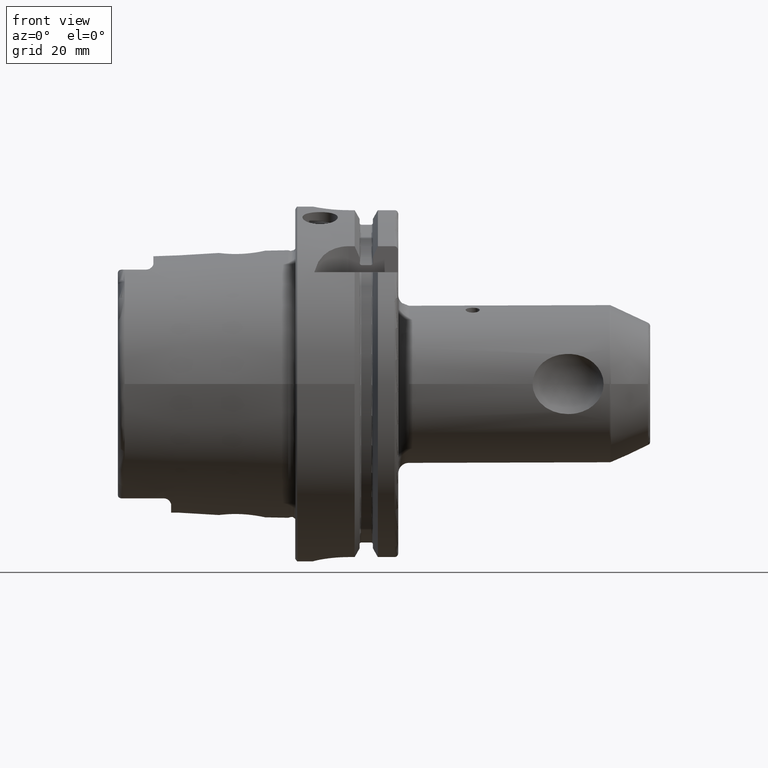
[diagram: clean part render]
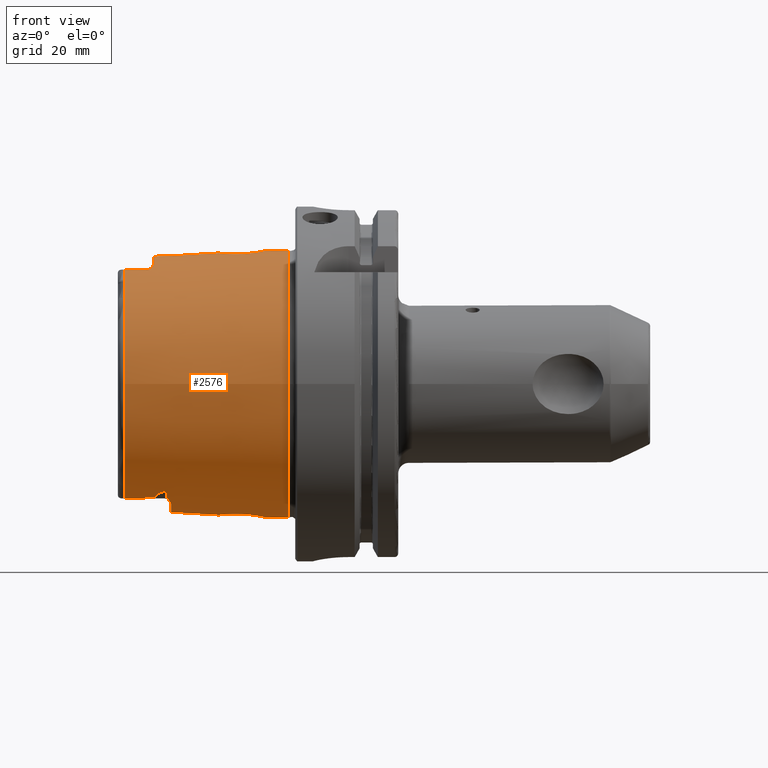
[diagram: same view with one face highlighted and labeled with its STEP entity id]
A machine part, front view. The second image highlights one B-rep face of the part: STEP entity #2576.
In plain terms, the highlighted conical surface has half-angle 2.868 deg.
Its self-contained STEP definition (entity closure, byte-faithful):
#21=(
BOUNDED_CURVE()
B_SPLINE_CURVE(2,(#4807,#4808,#4809),.UNSPECIFIED.,.F.,.F.)
B_SPLINE_CURVE_WITH_KNOTS((3,3),(0.584552731684763,1.01274112792473),
 .UNSPECIFIED.)
CURVE()
GEOMETRIC_REPRESENTATION_ITEM()
RATIONAL_B_SPLINE_CURVE((1.00299496728687,1.00299496728687,1.00138797244737))
REPRESENTATION_ITEM('')
);
#22=(
BOUNDED_CURVE()
B_SPLINE_CURVE(2,(#4876,#4877,#4878),.UNSPECIFIED.,.F.,.F.)
B_SPLINE_CURVE_WITH_KNOTS((3,3),(0.156364335444822,0.584552731684782),
 .UNSPECIFIED.)
CURVE()
GEOMETRIC_REPRESENTATION_ITEM()
RATIONAL_B_SPLINE_CURVE((1.00138797244738,1.00299496728688,1.00299496728688))
REPRESENTATION_ITEM('')
);
#78=CONICAL_SURFACE('',#2810,36.7524901081155,0.0500583457465976);
#100=FACE_BOUND('',#818,.T.);
#101=FACE_BOUND('',#819,.T.);
#205=LINE('',#4784,#329);
#329=VECTOR('',#3322,36.7524901081155);
#473=CIRCLE('',#2811,37.9073016032064);
#474=CIRCLE('',#2812,37.9073016032064);
#475=CIRCLE('',#2813,35.5976786130245);
#476=CIRCLE('',#2814,36.25399498998);
#477=CIRCLE('',#2815,35.5976786130245);
#478=CIRCLE('',#2816,36.003493987976);
#479=CIRCLE('',#2817,35.5976786130245);
#672=FACE_OUTER_BOUND('',#817,.T.);
#817=EDGE_LOOP('',(#2000,#2001,#2002,#2003,#2004,#2005,#2006,#2007,#2008,
#2009,#2010,#2011,#2012,#2013,#2014,#2015,#2016,#2017,#2018,#2019,#2020));
#818=EDGE_LOOP('',(#2021));
#819=EDGE_LOOP('',(#2022));
#942=B_SPLINE_CURVE_WITH_KNOTS('',3,(#4467,#4468,#4469,#4470,#4471,#4472,
#4473,#4474,#4475,#4476,#4477,#4478,#4479,#4480,#4481,#4482,#4483,#4484),
 .UNSPECIFIED.,.F.,.F.,(4,2,2,2,2,2,2,2,4),(1.82139636410114,1.83165892733975,
1.84192149057836,1.86244661705558,1.93660019990987,2.01075378276416,2.21475865094393,
2.41876351912369,2.7012608097453),.UNSPECIFIED.);
#944=B_SPLINE_CURVE_WITH_KNOTS('',3,(#4544,#4545,#4546,#4547,#4548,#4549,
#4550,#4551),.UNSPECIFIED.,.F.,.F.,(4,2,2,4),(2.11861414458057,2.2150675983984,
2.41910198133518,2.70152248778045),.UNSPECIFIED.);
#945=B_SPLINE_CURVE_WITH_KNOTS('',3,(#4570,#4571,#4572,#4573,#4574,#4575,
#4576,#4577),.UNSPECIFIED.,.F.,.F.,(4,2,2,4),(0.941785791175404,1.22420629762067,
1.42824068055745,1.52469413437528),.UNSPECIFIED.);
#949=B_SPLINE_CURVE_WITH_KNOTS('',3,(#4749,#4750,#4751,#4752,#4753,#4754,
#4755,#4756,#4757,#4758,#4759,#4760,#4761,#4762,#4763,#4764,#4765,#4766,
#4767,#4768,#4769,#4770,#4771,#4772,#4773,#4774,#4775,#4776,#4777),
 .UNSPECIFIED.,.T.,.F.,(4,1,1,1,1,1,1,1,1,1,1,1,1,1,1,1,1,1,1,1,1,1,1,1,
1,1,4),(-3.62526060553391,-3.43105021595174,-3.36631341942435,-3.23683982636957,
-3.10736623331478,-2.92934004286446,-2.91315584373261,-2.84841904720522,
-2.58947186109565,-2.49236666630457,-2.45999826804087,-2.33052467498609,
-2.2010510819313,-2.07157748887652,-2.02841962452493,-1.89894603147015,
-1.72631457406377,-1.55368311665739,-1.42420952360261,-1.38105165925101,
-1.20842020184464,-1.03578874443826,-0.776841558328696,-0.517894372219131,
-0.388420779164348,-0.258947186109565,0.),.UNSPECIFIED.);
#950=B_SPLINE_CURVE_WITH_KNOTS('',3,(#4788,#4789,#4790,#4791,#4792,#4793,
#4794,#4795,#4796,#4797,#4798,#4799,#4800,#4801,#4802,#4803,#4804,#4805),
 .UNSPECIFIED.,.F.,.F.,(4,2,2,2,2,2,2,2,4),(0.941531918456969,1.22402920907858,
1.42803407725834,1.6320389454381,1.70619252829239,1.78034611114668,1.80087123762391,
1.81113380086252,1.82139636410113),.UNSPECIFIED.);
#951=B_SPLINE_CURVE_WITH_KNOTS('',3,(#4811,#4812,#4813,#4814,#4815,#4816,
#4817,#4818,#4819,#4820,#4821,#4822,#4823,#4824,#4825,#4826,#4827,#4828),
 .UNSPECIFIED.,.F.,.F.,(4,2,2,2,2,2,2,2,4),(0.,0.135304265390776,0.202956398086164,
0.270608530781553,0.285985760505599,0.293674375367622,0.301362990229646,
0.309065814809453,0.312240543595572),.UNSPECIFIED.);
#952=B_SPLINE_CURVE_WITH_KNOTS('',3,(#4830,#4831,#4832,#4833,#4834,#4835,
#4836,#4837,#4838,#4839),.UNSPECIFIED.,.F.,.F.,(4,2,2,2,4),(0.355882377060995,
0.475337474766694,0.814409309765022,0.916871755852706,0.968383615557496),
 .UNSPECIFIED.);
#953=B_SPLINE_CURVE_WITH_KNOTS('',3,(#4843,#4844,#4845,#4846,#4847,#4848,
#4849,#4850,#4851,#4852,#4853,#4854,#4855,#4856),.UNSPECIFIED.,.F.,.F.,
(4,2,2,2,2,2,4),(0.968383615556389,0.974150710871793,1.03435732629017,1.16414359525985,
1.35274565404089,1.53834753535579,1.54014497255994),.UNSPECIFIED.);
#954=B_SPLINE_CURVE_WITH_KNOTS('',3,(#4858,#4859,#4860,#4861,#4862,#4863,
#4864,#4865,#4866,#4867,#4868,#4869,#4870,#4871,#4872,#4873,#4874,#4875),
 .UNSPECIFIED.,.F.,.F.,(4,2,2,2,2,2,2,2,4),(0.892798921569998,0.895973650356147,
0.903676474935954,0.911365089797976,0.919053704659998,0.934430934384042,
1.00208306707943,1.06973519977482,1.2050394651656),.UNSPECIFIED.);
#955=B_SPLINE_CURVE_WITH_KNOTS('',3,(#4881,#4882,#4883,#4884,#4885,#4886,
#4887,#4888,#4889,#4890,#4891,#4892,#4893,#4894,#4895,#4896),
 .UNSPECIFIED.,.F.,.F.,(4,2,2,2,2,2,2,4),(0.951925610471479,1.05814966475809,
1.29620724158489,1.38654842287017,1.45440735859072,1.51777192560581,1.57393791037476,
1.57713817106295),.UNSPECIFIED.);
#956=B_SPLINE_CURVE_WITH_KNOTS('',3,(#4899,#4900,#4901,#4902,#4903,#4904,
#4905,#4906,#4907,#4908,#4909,#4910,#4911,#4912),.UNSPECIFIED.,.F.,.F.,
(4,2,2,2,2,2,4),(0.58599893882249,0.631178615980692,0.682399631970958,0.741327952034728,
0.839467365501743,1.06407790074447,1.25314135770608),.UNSPECIFIED.);
#957=B_SPLINE_CURVE_WITH_KNOTS('',3,(#4915,#4916,#4917,#4918,#4919,#4920,
#4921,#4922,#4923,#4924,#4925,#4926,#4927,#4928,#4929,#4930,#4931,#4932,
#4933,#4934,#4935,#4936,#4937,#4938,#4939,#4940),.UNSPECIFIED.,.T.,.F.,
(4,1,1,1,1,1,1,1,1,1,1,1,1,1,1,1,1,1,1,1,1,1,1,4),(-3.62526060553391,-3.36631341942435,
-3.23683982636957,-3.13973463157848,-3.10736623331478,-2.84841904720522,
-2.58947186109565,-2.41684040368928,-2.2442089462829,-2.2010510819313,-2.07157748887652,
-1.89894603147015,-1.72631457406377,-1.55368311665739,-1.42420952360261,
-1.29473593054783,-1.16526233749304,-1.03578874443826,-0.776841558328696,
-0.712104761801304,-0.51789437221913,-0.388420779164348,-0.258947186109565,
0.),.UNSPECIFIED.);
#1101=VERTEX_POINT('',#4453);
#1102=VERTEX_POINT('',#4466);
#1118=VERTEX_POINT('',#4530);
#1119=VERTEX_POINT('',#4543);
#1125=VERTEX_POINT('',#4567);
#1126=VERTEX_POINT('',#4569);
#1129=VERTEX_POINT('',#4712);
#1132=VERTEX_POINT('',#4779);
#1133=VERTEX_POINT('',#4780);
#1134=VERTEX_POINT('',#4783);
#1135=VERTEX_POINT('',#4785);
#1136=VERTEX_POINT('',#4787);
#1137=VERTEX_POINT('',#4806);
#1138=VERTEX_POINT('',#4810);
#1139=VERTEX_POINT('',#4829);
#1140=VERTEX_POINT('',#4840);
#1141=VERTEX_POINT('',#4842);
#1142=VERTEX_POINT('',#4857);
#1143=VERTEX_POINT('',#4880);
#1144=VERTEX_POINT('',#4897);
#1145=VERTEX_POINT('',#4914);
#1420=EDGE_CURVE('',#1102,#1101,#942,.T.);
#1442=EDGE_CURVE('',#1119,#1118,#944,.T.);
#1450=EDGE_CURVE('',#1126,#1125,#945,.T.);
#1458=EDGE_CURVE('',#1129,#1129,#949,.T.);
#1459=EDGE_CURVE('',#1132,#1133,#473,.T.);
#1460=EDGE_CURVE('',#1133,#1132,#474,.T.);
#1461=EDGE_CURVE('',#1133,#1134,#205,.T.);
#1462=EDGE_CURVE('',#1134,#1135,#475,.T.);
#1463=EDGE_CURVE('',#1135,#1136,#950,.T.);
#1464=EDGE_CURVE('',#1136,#1137,#21,.T.);
#1465=EDGE_CURVE('',#1138,#1137,#951,.T.);
#1466=EDGE_CURVE('',#1139,#1138,#952,.T.);
#1467=EDGE_CURVE('',#1139,#1140,#476,.T.);
#1468=EDGE_CURVE('',#1141,#1140,#953,.T.);
#1469=EDGE_CURVE('',#1142,#1141,#954,.T.);
#1470=EDGE_CURVE('',#1142,#1102,#22,.T.);
#1471=EDGE_CURVE('',#1101,#1126,#477,.T.);
#1472=EDGE_CURVE('',#1143,#1125,#955,.T.);
#1473=EDGE_CURVE('',#1143,#1144,#478,.T.);
#1474=EDGE_CURVE('',#1119,#1144,#956,.T.);
#1475=EDGE_CURVE('',#1118,#1134,#479,.T.);
#1476=EDGE_CURVE('',#1145,#1145,#957,.T.);
#2000=ORIENTED_EDGE('',*,*,#1459,.F.);
#2001=ORIENTED_EDGE('',*,*,#1460,.F.);
#2002=ORIENTED_EDGE('',*,*,#1461,.T.);
#2003=ORIENTED_EDGE('',*,*,#1462,.T.);
#2004=ORIENTED_EDGE('',*,*,#1463,.T.);
#2005=ORIENTED_EDGE('',*,*,#1464,.T.);
#2006=ORIENTED_EDGE('',*,*,#1465,.F.);
#2007=ORIENTED_EDGE('',*,*,#1466,.F.);
#2008=ORIENTED_EDGE('',*,*,#1467,.T.);
#2009=ORIENTED_EDGE('',*,*,#1468,.F.);
#2010=ORIENTED_EDGE('',*,*,#1469,.F.);
#2011=ORIENTED_EDGE('',*,*,#1470,.T.);
#2012=ORIENTED_EDGE('',*,*,#1420,.T.);
#2013=ORIENTED_EDGE('',*,*,#1471,.T.);
#2014=ORIENTED_EDGE('',*,*,#1450,.T.);
#2015=ORIENTED_EDGE('',*,*,#1472,.F.);
#2016=ORIENTED_EDGE('',*,*,#1473,.T.);
#2017=ORIENTED_EDGE('',*,*,#1474,.F.);
#2018=ORIENTED_EDGE('',*,*,#1442,.T.);
#2019=ORIENTED_EDGE('',*,*,#1475,.T.);
#2020=ORIENTED_EDGE('',*,*,#1461,.F.);
#2021=ORIENTED_EDGE('',*,*,#1476,.F.);
#2022=ORIENTED_EDGE('',*,*,#1458,.F.);
#2576=ADVANCED_FACE('',(#672,#100,#101),#78,.T.);
#2810=AXIS2_PLACEMENT_3D('',#4778,#3316,#3317);
#2811=AXIS2_PLACEMENT_3D('',#4781,#3318,#3319);
#2812=AXIS2_PLACEMENT_3D('',#4782,#3320,#3321);
#2813=AXIS2_PLACEMENT_3D('',#4786,#3323,#3324);
#2814=AXIS2_PLACEMENT_3D('',#4841,#3325,#3326);
#2815=AXIS2_PLACEMENT_3D('',#4879,#3327,#3328);
#2816=AXIS2_PLACEMENT_3D('',#4898,#3329,#3330);
#2817=AXIS2_PLACEMENT_3D('',#4913,#3331,#3332);
#3316=DIRECTION('center_axis',(1.,0.,0.));
#3317=DIRECTION('ref_axis',(0.,1.,0.));
#3318=DIRECTION('center_axis',(1.,0.,0.));
#3319=DIRECTION('ref_axis',(0.,0.,-1.));
#3320=DIRECTION('center_axis',(1.,0.,0.));
#3321=DIRECTION('ref_axis',(0.,0.,-1.));
#3322=DIRECTION('',(-0.998747342623037,0.0500374420151823,6.12781932014143E-18));
#3323=DIRECTION('center_axis',(1.,0.,0.));
#3324=DIRECTION('ref_axis',(0.,0.,-1.));
#3325=DIRECTION('center_axis',(1.,0.,0.));
#3326=DIRECTION('ref_axis',(0.,1.,0.));
#3327=DIRECTION('center_axis',(1.,0.,0.));
#3328=DIRECTION('ref_axis',(0.,0.,-1.));
#3329=DIRECTION('center_axis',(1.,0.,0.));
#3330=DIRECTION('ref_axis',(0.,1.,0.));
#3331=DIRECTION('center_axis',(1.,0.,0.));
#3332=DIRECTION('ref_axis',(0.,0.,-1.));
#4453=CARTESIAN_POINT('',(-48.1000748840304,15.0787152148571,-32.2463497175327));
#4466=CARTESIAN_POINT('',(-39.3086860506441,17.2220784153651,-31.6567015600095));
#4467=CARTESIAN_POINT('Ctrl Pts',(-39.3086860506439,17.2220784153651,-31.6567015600096));
#4468=CARTESIAN_POINT('Ctrl Pts',(-39.3086860506439,17.1920288621925,-31.6730493074242));
#4469=CARTESIAN_POINT('Ctrl Pts',(-39.3149778656361,17.1622985367362,-31.6888083298259));
#4470=CARTESIAN_POINT('Ctrl Pts',(-39.3379356243704,17.1047575471073,-31.7185977246152));
#4471=CARTESIAN_POINT('Ctrl Pts',(-39.3545931085757,17.0769444761517,-31.7326299669));
#4472=CARTESIAN_POINT('Ctrl Pts',(-39.41492287308,16.9977687004959,-31.7717242618145));
#4473=CARTESIAN_POINT('Ctrl Pts',(-39.4690330405114,16.9505386197656,-31.7938497879436));
#4474=CARTESIAN_POINT('Ctrl Pts',(-39.7137538085318,16.7691556019457,-31.8763882092881));
#4475=CARTESIAN_POINT('Ctrl Pts',(-39.9557031082111,16.6668123685081,-31.9161154581445));
#4476=CARTESIAN_POINT('Ctrl Pts',(-40.4538120390228,16.4807891402054,-31.9844991546727));
#4477=CARTESIAN_POINT('Ctrl Pts',(-40.7121103138056,16.4018770942044,-32.0104206666339));
#4478=CARTESIAN_POINT('Ctrl Pts',(-41.6015350915672,16.1516844838416,-32.0879931345296));
#4479=CARTESIAN_POINT('Ctrl Pts',(-42.2774968259687,16.0065639510366,-32.1225120780024));
#4480=CARTESIAN_POINT('Ctrl Pts',(-43.6583569770469,15.7387900082285,-32.1775602969968));
#4481=CARTESIAN_POINT('Ctrl Pts',(-44.3638273319757,15.6187903492069,-32.19660809961));
#4482=CARTESIAN_POINT('Ctrl Pts',(-46.0708874643597,15.3507400024476,-32.2307282620297));
#4483=CARTESIAN_POINT('Ctrl Pts',(-47.0815953489825,15.2100460868363,-32.2412671998384));
#4484=CARTESIAN_POINT('Ctrl Pts',(-48.1000748840303,15.0787152148571,-32.2463497175327));
#4530=CARTESIAN_POINT('',(-48.1000748840304,-15.0787152148571,32.2463497175327));
#4543=CARTESIAN_POINT('',(-42.0000000002536,-16.0736316900317,32.1042809403702));
#4544=CARTESIAN_POINT('Ctrl Pts',(-42.0000000002663,-16.0736316900856,32.1042809403568));
#4545=CARTESIAN_POINT('Ctrl Pts',(-42.3189705746531,-16.0023328339441,32.122106579912));
#4546=CARTESIAN_POINT('Ctrl Pts',(-42.6420078541405,-15.9358744877955,32.1370456038288));
#4547=CARTESIAN_POINT('Ctrl Pts',(-43.6589764923173,-15.7386786248219,32.177580265585));
#4548=CARTESIAN_POINT('Ctrl Pts',(-44.364550975751,-15.6186692080222,32.1966265955614));
#4549=CARTESIAN_POINT('Ctrl Pts',(-46.0714496280263,-15.3506621075505,32.2307339275334));
#4550=CARTESIAN_POINT('Ctrl Pts',(-47.0818768820559,-15.210009783717,32.2412686047727));
#4551=CARTESIAN_POINT('Ctrl Pts',(-48.1000748840304,-15.0787152148571,32.2463497175327));
#4567=CARTESIAN_POINT('',(-42.0000000002536,16.0736316900317,32.1042809403702));
#4569=CARTESIAN_POINT('',(-48.1000748840304,15.0787152148571,32.2463497175327));
#4570=CARTESIAN_POINT('Ctrl Pts',(-48.1000748840304,15.0787152148571,32.2463497175327));
#4571=CARTESIAN_POINT('Ctrl Pts',(-47.0818768820559,15.210009783717,32.2412686047727));
#4572=CARTESIAN_POINT('Ctrl Pts',(-46.0714496280263,15.3506621075505,32.2307339275334));
#4573=CARTESIAN_POINT('Ctrl Pts',(-44.364550975751,15.6186692080222,32.1966265955614));
#4574=CARTESIAN_POINT('Ctrl Pts',(-43.6589764923172,15.7386786248219,32.177580265585));
#4575=CARTESIAN_POINT('Ctrl Pts',(-42.6420078541405,15.9358744877955,32.1370456038288));
#4576=CARTESIAN_POINT('Ctrl Pts',(-42.3189705746531,16.0023328339441,32.122106579912));
#4577=CARTESIAN_POINT('Ctrl Pts',(-42.0000000002663,16.0736316900856,32.1042809403568));
#4712=CARTESIAN_POINT('',(-15.0482435047104,6.49272743621066,-36.6834276129017));
#4749=CARTESIAN_POINT('Ctrl Pts',(-15.0482435047104,6.49272743621066,-36.6834276129017));
#4750=CARTESIAN_POINT('Ctrl Pts',(-14.3472268017668,6.498384326059,-36.7180933290472));
#4751=CARTESIAN_POINT('Ctrl Pts',(-13.3602787580568,6.34660719704936,-36.7959496546419));
#4752=CARTESIAN_POINT('Ctrl Pts',(-11.9857973356134,5.79315865285012,-36.9569633245965));
#4753=CARTESIAN_POINT('Ctrl Pts',(-10.934929357903,5.13560220658059,-37.1093536703564));
#4754=CARTESIAN_POINT('Ctrl Pts',(-9.81809247657418,4.04366507758733,-37.3050296081503));
#4755=CARTESIAN_POINT('Ctrl Pts',(-9.170355113669,2.96252915890745,-37.4369834989117));
#4756=CARTESIAN_POINT('Ctrl Pts',(-8.82216226913567,2.03853631286912,-37.5110439395951));
#4757=CARTESIAN_POINT('Ctrl Pts',(-8.45250510962989,0.785378882021696,-37.5917120732813));
#4758=CARTESIAN_POINT('Ctrl Pts',(-8.43497780620993,-0.760392083298143,
-37.5957440702077));
#4759=CARTESIAN_POINT('Ctrl Pts',(-8.86578941736316,-2.1959378097087,-37.5013725026005));
#4760=CARTESIAN_POINT('Ctrl Pts',(-9.25938973284992,-3.10069490586043,-37.4188723450411));
#4761=CARTESIAN_POINT('Ctrl Pts',(-9.85467322048128,-4.05326821897685,-37.2998395974208));
#4762=CARTESIAN_POINT('Ctrl Pts',(-10.8234654355013,-5.04737463043072,-37.1273414476768));
#4763=CARTESIAN_POINT('Ctrl Pts',(-11.7871190728651,-5.67846863809293,-36.9845771310199));
#4764=CARTESIAN_POINT('Ctrl Pts',(-12.8324901390342,-6.15372497620764,-36.8551013089898));
#4765=CARTESIAN_POINT('Ctrl Pts',(-14.1204413507292,-6.50719796920167,-36.7283617023125));
#4766=CARTESIAN_POINT('Ctrl Pts',(-15.8502088272727,-6.53026516161689,-36.6357957728059));
#4767=CARTESIAN_POINT('Ctrl Pts',(-17.6262956117543,-6.02934030051084,-36.6339216431799));
#4768=CARTESIAN_POINT('Ctrl Pts',(-18.7616207960911,-5.3258781892605,-36.6848114600331));
#4769=CARTESIAN_POINT('Ctrl Pts',(-19.7297229224589,-4.5088184881077,-36.7459820947128));
#4770=CARTESIAN_POINT('Ctrl Pts',(-20.6620739735896,-3.39817210107555,-36.8298557635288));
#4771=CARTESIAN_POINT('Ctrl Pts',(-21.5448099956986,-1.19010135951003,-36.9353027047155));
#4772=CARTESIAN_POINT('Ctrl Pts',(-21.5822551117028,1.36485486743969,-36.9400418797083));
#4773=CARTESIAN_POINT('Ctrl Pts',(-20.4823781742663,3.73110148544543,-36.8075154377976));
#4774=CARTESIAN_POINT('Ctrl Pts',(-19.1540607226609,5.05550283521618,-36.7044309903942));
#4775=CARTESIAN_POINT('Ctrl Pts',(-17.4945994415422,6.15048274976999,-36.6242376057052));
#4776=CARTESIAN_POINT('Ctrl Pts',(-15.9829324419684,6.48518491641288,-36.637206658041));
#4777=CARTESIAN_POINT('Ctrl Pts',(-15.0482435047104,6.49272743621066,-36.6834276129017));
#4778=CARTESIAN_POINT('Origin',(-25.0500374420152,0.,0.));
#4779=CARTESIAN_POINT('',(-2.,37.9073016032064,0.));
#4780=CARTESIAN_POINT('',(-2.00000000000001,-37.9073016032064,-4.64230555726801E-15));
#4781=CARTESIAN_POINT('Origin',(-2.,0.,0.));
#4782=CARTESIAN_POINT('Origin',(-2.,0.,0.));
#4783=CARTESIAN_POINT('',(-48.1000748840304,-35.5976786130245,-4.35945831705167E-15));
#4784=CARTESIAN_POINT('',(-25.0500374420152,-36.7524901081155,-4.50088193715984E-15));
#4785=CARTESIAN_POINT('',(-48.1000748840304,-15.0787152148571,-32.2463497175327));
#4786=CARTESIAN_POINT('Origin',(-48.1000748840304,0.,0.));
#4787=CARTESIAN_POINT('',(-39.3086860506441,-17.2220784153651,-31.6567015600095));
#4788=CARTESIAN_POINT('Ctrl Pts',(-48.1000748840304,-15.0787152148571,-32.2463497175327));
#4789=CARTESIAN_POINT('Ctrl Pts',(-47.0815953489825,-15.2100460868363,-32.2412671998384));
#4790=CARTESIAN_POINT('Ctrl Pts',(-46.0708874643597,-15.3507400024476,-32.2307282620297));
#4791=CARTESIAN_POINT('Ctrl Pts',(-44.3638273319757,-15.6187903492069,-32.19660809961));
#4792=CARTESIAN_POINT('Ctrl Pts',(-43.6583569770469,-15.7387900082285,-32.1775602969968));
#4793=CARTESIAN_POINT('Ctrl Pts',(-42.2774968259687,-16.0065639510366,-32.1225120780024));
#4794=CARTESIAN_POINT('Ctrl Pts',(-41.6015350915672,-16.1516844838416,-32.0879931345296));
#4795=CARTESIAN_POINT('Ctrl Pts',(-40.7121103138057,-16.4018770942044,-32.0104206666339));
#4796=CARTESIAN_POINT('Ctrl Pts',(-40.4538120390228,-16.4807891402054,-31.9844991546726));
#4797=CARTESIAN_POINT('Ctrl Pts',(-39.9557031082111,-16.6668123685081,-31.9161154581445));
#4798=CARTESIAN_POINT('Ctrl Pts',(-39.7137538085319,-16.7691556019457,-31.8763882092881));
#4799=CARTESIAN_POINT('Ctrl Pts',(-39.4690330405114,-16.9505386197656,-31.7938497879436));
#4800=CARTESIAN_POINT('Ctrl Pts',(-39.41492287308,-16.9977687004959,-31.7717242618145));
#4801=CARTESIAN_POINT('Ctrl Pts',(-39.3545931085758,-17.0769444761517,-31.7326299669));
#4802=CARTESIAN_POINT('Ctrl Pts',(-39.3379356243703,-17.1047575471073,-31.7185977246152));
#4803=CARTESIAN_POINT('Ctrl Pts',(-39.314977865636,-17.1622985367361,-31.688808329826));
#4804=CARTESIAN_POINT('Ctrl Pts',(-39.3086860506439,-17.1920288621925,-31.6730493074242));
#4805=CARTESIAN_POINT('Ctrl Pts',(-39.3086860506439,-17.2220784153651,-31.6567015600096));
#4806=CARTESIAN_POINT('',(-36.9999999999998,-19.7604190654811,-30.275777472314));
#4807=CARTESIAN_POINT('Ctrl Pts',(-39.3086860506441,-17.2220784153651,-31.6567015600095));
#4808=CARTESIAN_POINT('Ctrl Pts',(-39.3086860506441,-18.4892152804039,-30.9673457719047));
#4809=CARTESIAN_POINT('Ctrl Pts',(-37.0000000000089,-19.760419065476,-30.2757774723168));
#4810=CARTESIAN_POINT('',(-36.2297931655992,-17.2957936700592,-31.7922009905656));
#4811=CARTESIAN_POINT('Ctrl Pts',(-36.2297931655991,-17.2957936700592,-31.7922009905656));
#4812=CARTESIAN_POINT('Ctrl Pts',(-36.2297931655991,-17.6919746847632,-31.5766680965597));
#4813=CARTESIAN_POINT('Ctrl Pts',(-36.2521990165892,-18.1190045646745,-31.3326752508756));
#4814=CARTESIAN_POINT('Ctrl Pts',(-36.3408092415002,-18.7314387685111,-30.9624943289716));
#4815=CARTESIAN_POINT('Ctrl Pts',(-36.3790895444364,-18.9299841471613,-30.8391450528654));
#4816=CARTESIAN_POINT('Ctrl Pts',(-36.4852329136377,-19.306843178886,-30.5983353090591));
#4817=CARTESIAN_POINT('Ctrl Pts',(-36.5439103950281,-19.4871821233798,-30.4800880558704));
#4818=CARTESIAN_POINT('Ctrl Pts',(-36.6912326687357,-19.6798076445983,-30.3467082687203));
#4819=CARTESIAN_POINT('Ctrl Pts',(-36.7249701183787,-19.7165113518141,-30.3208469816645));
#4820=CARTESIAN_POINT('Ctrl Pts',(-36.7841864173308,-19.7579943063986,-30.290274608581));
#4821=CARTESIAN_POINT('Ctrl Pts',(-36.8053838947294,-19.7694984454156,-30.2814962901986));
#4822=CARTESIAN_POINT('Ctrl Pts',(-36.8506143317697,-19.7854180725538,-30.2683898183443));
#4823=CARTESIAN_POINT('Ctrl Pts',(-36.8746547533364,-19.7898201350064,-30.264071114845));
#4824=CARTESIAN_POINT('Ctrl Pts',(-36.925895284142,-19.7884151696532,-30.2619225368856));
#4825=CARTESIAN_POINT('Ctrl Pts',(-36.9499861453108,-19.7826799175172,-30.2642318432453));
#4826=CARTESIAN_POINT('Ctrl Pts',(-36.9820207117301,-19.7696848900689,-30.2708039920388));
#4827=CARTESIAN_POINT('Ctrl Pts',(-36.9911306097576,-19.7653027102035,-30.273120641115));
#4828=CARTESIAN_POINT('Ctrl Pts',(-36.9999999999998,-19.7604190654811,-30.275777472314));
#4829=CARTESIAN_POINT('',(-35.,-12.7918651267415,-33.9222690767105));
#4830=CARTESIAN_POINT('Ctrl Pts',(-35.,-12.7918651267426,-33.9222690767101));
#4831=CARTESIAN_POINT('Ctrl Pts',(-35.0000000000001,-13.2716695445343,-33.7413379784475));
#4832=CARTESIAN_POINT('Ctrl Pts',(-35.0765460606978,-13.7105867284853,-33.5594062083601));
#4833=CARTESIAN_POINT('Ctrl Pts',(-35.3935172162449,-15.027514584839,-32.9882321567447));
#4834=CARTESIAN_POINT('Ctrl Pts',(-35.8272793338039,-15.8448282797016,-32.5701705725068));
#4835=CARTESIAN_POINT('Ctrl Pts',(-36.1303536788273,-16.6786905371956,-32.126600714556));
#4836=CARTESIAN_POINT('Ctrl Pts',(-36.1820664850684,-16.8557754437463,-32.030984619072));
#4837=CARTESIAN_POINT('Ctrl Pts',(-36.2225122577352,-17.1184652869411,-31.8886039957027));
#4838=CARTESIAN_POINT('Ctrl Pts',(-36.2297931655992,-17.2061020907562,-31.8409955691488));
#4839=CARTESIAN_POINT('Ctrl Pts',(-36.2297931655992,-17.2957936700592,-31.7922009905656));
#4840=CARTESIAN_POINT('',(-35.,12.7918651267415,-33.9222690767105));
#4841=CARTESIAN_POINT('Origin',(-35.,0.,0.));
#4842=CARTESIAN_POINT('',(-36.2297931655992,17.2957936700592,-31.7922009905656));
#4843=CARTESIAN_POINT('Ctrl Pts',(-36.2297931655992,17.2957936700592,-31.7922009905656));
#4844=CARTESIAN_POINT('Ctrl Pts',(-36.2297931655992,17.2857521011896,-31.7976638681859));
#4845=CARTESIAN_POINT('Ctrl Pts',(-36.2297018732723,17.2756840159163,-31.803140214099));
#4846=CARTESIAN_POINT('Ctrl Pts',(-36.2275970792751,17.1601682556353,-31.8659616470355));
#4847=CARTESIAN_POINT('Ctrl Pts',(-36.2156218316917,17.0562072347614,-31.9224079423349));
#4848=CARTESIAN_POINT('Ctrl Pts',(-36.1505093185127,16.7229293390599,-32.1027521967692));
#4849=CARTESIAN_POINT('Ctrl Pts',(-36.065134056668,16.484850638108,-32.2308215310631));
#4850=CARTESIAN_POINT('Ctrl Pts',(-35.7984585549742,15.8312737268515,-32.5732245714574));
#4851=CARTESIAN_POINT('Ctrl Pts',(-35.5744019673667,15.3507133777924,-32.8174718312589));
#4852=CARTESIAN_POINT('Ctrl Pts',(-35.1938633470319,14.2651773499194,-33.3242510091413));
#4853=CARTESIAN_POINT('Ctrl Pts',(-35.0037140190077,13.5715015976818,-33.627505377242));
#4854=CARTESIAN_POINT('Ctrl Pts',(-35.0000176891147,12.8065033311274,-33.9167454576574));
#4855=CARTESIAN_POINT('Ctrl Pts',(-35.,12.7991780985434,-33.9195114030197));
#4856=CARTESIAN_POINT('Ctrl Pts',(-35.,12.7918651267414,-33.9222690767105));
#4857=CARTESIAN_POINT('',(-37.,19.7604190654809,-30.2757774723141));
#4858=CARTESIAN_POINT('Ctrl Pts',(-37.,19.760419065481,-30.275777472314));
#4859=CARTESIAN_POINT('Ctrl Pts',(-36.9911306097578,19.7653027102035,-30.273120641115));
#4860=CARTESIAN_POINT('Ctrl Pts',(-36.9820207117302,19.769684890069,-30.2708039920388));
#4861=CARTESIAN_POINT('Ctrl Pts',(-36.9499861453108,19.7826799175173,-30.2642318432453));
#4862=CARTESIAN_POINT('Ctrl Pts',(-36.925895284142,19.7884151696532,-30.2619225368856));
#4863=CARTESIAN_POINT('Ctrl Pts',(-36.8746547533364,19.7898201350064,-30.264071114845));
#4864=CARTESIAN_POINT('Ctrl Pts',(-36.8506143317697,19.7854180725537,-30.2683898183443));
#4865=CARTESIAN_POINT('Ctrl Pts',(-36.8053838947294,19.7694984454156,-30.2814962901986));
#4866=CARTESIAN_POINT('Ctrl Pts',(-36.7841864173308,19.7579943063986,-30.290274608581));
#4867=CARTESIAN_POINT('Ctrl Pts',(-36.7249701183787,19.7165113518142,-30.3208469816645));
#4868=CARTESIAN_POINT('Ctrl Pts',(-36.6912326687357,19.6798076445984,-30.3467082687203));
#4869=CARTESIAN_POINT('Ctrl Pts',(-36.5439103950281,19.4871821233798,-30.4800880558704));
#4870=CARTESIAN_POINT('Ctrl Pts',(-36.4852329136378,19.3068431788861,-30.598335309059));
#4871=CARTESIAN_POINT('Ctrl Pts',(-36.3790895444364,18.9299841471613,-30.8391450528653));
#4872=CARTESIAN_POINT('Ctrl Pts',(-36.3408092415002,18.7314387685112,-30.9624943289715));
#4873=CARTESIAN_POINT('Ctrl Pts',(-36.2521990165892,18.1190045646745,-31.3326752508755));
#4874=CARTESIAN_POINT('Ctrl Pts',(-36.2297931655991,17.6919746847632,-31.5766680965597));
#4875=CARTESIAN_POINT('Ctrl Pts',(-36.2297931655991,17.2957936700592,-31.7922009905656));
#4876=CARTESIAN_POINT('Ctrl Pts',(-37.0000000000092,19.7604190654759,-30.2757774723168));
#4877=CARTESIAN_POINT('Ctrl Pts',(-39.3086860506441,18.4892152804039,-30.9673457719048));
#4878=CARTESIAN_POINT('Ctrl Pts',(-39.3086860506441,17.2220784153651,-31.6567015600095));
#4879=CARTESIAN_POINT('Origin',(-48.1000748840304,0.,0.));
#4880=CARTESIAN_POINT('',(-40.,12.4227760464511,33.7923987701664));
#4881=CARTESIAN_POINT('Ctrl Pts',(-40.,12.4227760464511,33.7923987701664));
#4882=CARTESIAN_POINT('Ctrl Pts',(-40.,12.7419527823347,33.6750628824099));
#4883=CARTESIAN_POINT('Ctrl Pts',(-40.0375731646404,13.0776475996544,33.5444889562869));
#4884=CARTESIAN_POINT('Ctrl Pts',(-40.2952030220109,14.2043388829051,33.0777059010321));
#4885=CARTESIAN_POINT('Ctrl Pts',(-40.6465555000834,14.8752966004717,32.7549341580242));
#4886=CARTESIAN_POINT('Ctrl Pts',(-41.0603895118508,15.4779630836831,32.4483621116813));
#4887=CARTESIAN_POINT('Ctrl Pts',(-41.198020508765,15.6556849566334,32.355204722744));
#4888=CARTESIAN_POINT('Ctrl Pts',(-41.4545269599286,15.9060673278615,32.2183420240441));
#4889=CARTESIAN_POINT('Ctrl Pts',(-41.5436022580091,15.9688653327562,32.1820824055284));
#4890=CARTESIAN_POINT('Ctrl Pts',(-41.6853529076193,16.0463920787559,32.1355548450183));
#4891=CARTESIAN_POINT('Ctrl Pts',(-41.7512744555463,16.0697812119573,32.1201454390557));
#4892=CARTESIAN_POINT('Ctrl Pts',(-41.8741794719285,16.0889724726194,32.1036488638477));
#4893=CARTESIAN_POINT('Ctrl Pts',(-41.9317167825707,16.0876211043842,32.1011018387603));
#4894=CARTESIAN_POINT('Ctrl Pts',(-41.9933777503431,16.0750788518127,32.1039274012118));
#4895=CARTESIAN_POINT('Ctrl Pts',(-41.9966932024657,16.0743708520026,32.1040961402821));
#4896=CARTESIAN_POINT('Ctrl Pts',(-42.0000000002664,16.0736316900856,32.1042809403567));
#4897=CARTESIAN_POINT('',(-40.,-12.4227760464511,33.7923987701664));
#4898=CARTESIAN_POINT('Origin',(-40.,0.,0.));
#4899=CARTESIAN_POINT('Ctrl Pts',(-42.0000000002664,-16.0736316900856,32.1042809403568));
#4900=CARTESIAN_POINT('Ctrl Pts',(-41.9532981877177,-16.0840708530993,32.1016710140877));
#4901=CARTESIAN_POINT('Ctrl Pts',(-41.9050462288342,-16.0882872456028,32.1022609254704));
#4902=CARTESIAN_POINT('Ctrl Pts',(-41.7973675228036,-16.0800004321419,32.1124461122313));
#4903=CARTESIAN_POINT('Ctrl Pts',(-41.7413360757048,-16.0653619433609,32.1229212478587));
#4904=CARTESIAN_POINT('Ctrl Pts',(-41.6239822044575,-16.0165128109446,32.1538775766795));
#4905=CARTESIAN_POINT('Ctrl Pts',(-41.5522675624038,-15.9755629601776,32.178331685672));
#4906=CARTESIAN_POINT('Ctrl Pts',(-41.3277927134026,-15.7966592313303,32.2792175155223));
#4907=CARTESIAN_POINT('Ctrl Pts',(-41.1901764677997,-15.6399550711419,32.3632616530426));
#4908=CARTESIAN_POINT('Ctrl Pts',(-40.8198003078495,-15.1566985557669,32.614625740416));
#4909=CARTESIAN_POINT('Ctrl Pts',(-40.5143326017075,-14.6456107207813,32.8689668394536));
#4910=CARTESIAN_POINT('Ctrl Pts',(-40.1039820766273,-13.4955400218796,33.3777943404947));
#4911=CARTESIAN_POINT('Ctrl Pts',(-40.,-12.9546784960257,33.5968605648272));
#4912=CARTESIAN_POINT('Ctrl Pts',(-40.,-12.422776046451,33.7923987701664));
#4913=CARTESIAN_POINT('Origin',(-48.1000748840304,0.,0.));
#4914=CARTESIAN_POINT('',(-15.0482435047104,6.49272743621066,36.6834276129017));
#4915=CARTESIAN_POINT('Ctrl Pts',(-15.0482435047104,6.49272743621066,36.6834276129017));
#4916=CARTESIAN_POINT('Ctrl Pts',(-15.9829324419684,6.48518491641288,36.637206658041));
#4917=CARTESIAN_POINT('Ctrl Pts',(-17.4866023410943,6.14920774952169,36.6235790675961));
#4918=CARTESIAN_POINT('Ctrl Pts',(-19.0577948349359,5.12534251951808,36.7000400389206));
#4919=CARTESIAN_POINT('Ctrl Pts',(-19.7285341214944,4.47535633862254,36.7489785200356));
#4920=CARTESIAN_POINT('Ctrl Pts',(-20.6550188198957,3.37673173572321,36.8280268143641));
#4921=CARTESIAN_POINT('Ctrl Pts',(-21.5767265446075,1.36398348816804,36.93957893606));
#4922=CARTESIAN_POINT('Ctrl Pts',(-21.546724865986,-1.1898750248608,36.9354628300056));
#4923=CARTESIAN_POINT('Ctrl Pts',(-20.6614810285301,-3.39819593521009,36.8298067136365));
#4924=CARTESIAN_POINT('Ctrl Pts',(-19.7299275837876,-4.50878451478095,36.7460018871591));
#4925=CARTESIAN_POINT('Ctrl Pts',(-18.7617072817101,-5.32584036574976,36.6848153804274));
#4926=CARTESIAN_POINT('Ctrl Pts',(-17.6257926470054,-6.02949389457767,36.6338999971975));
#4927=CARTESIAN_POINT('Ctrl Pts',(-15.8516352881468,-6.52976180497178,36.6358727150011));
#4928=CARTESIAN_POINT('Ctrl Pts',(-13.9603354002875,-6.5058868548532,36.736639679508));
#4929=CARTESIAN_POINT('Ctrl Pts',(-12.1928929992637,-5.95072068791055,36.9230706723905));
#4930=CARTESIAN_POINT('Ctrl Pts',(-10.8263000201084,-5.04719821437838,37.1274642889699));
#4931=CARTESIAN_POINT('Ctrl Pts',(-9.85299902234013,-4.05128459645323,37.2998626207809));
#4932=CARTESIAN_POINT('Ctrl Pts',(-9.06190637750763,-2.78872073232155,37.4584370687624));
#4933=CARTESIAN_POINT('Ctrl Pts',(-8.43391629856387,-0.884062695565897,
37.5960041726761));
#4934=CARTESIAN_POINT('Ctrl Pts',(-8.45410064609006,0.788619655243524,37.5913278334431));
#4935=CARTESIAN_POINT('Ctrl Pts',(-9.01441929574745,2.69257857020313,37.4691269556054));
#4936=CARTESIAN_POINT('Ctrl Pts',(-9.77284187476569,3.9998472847134,37.3126901456211));
#4937=CARTESIAN_POINT('Ctrl Pts',(-10.9362389650119,5.13567294871907,37.1096157994659));
#4938=CARTESIAN_POINT('Ctrl Pts',(-12.6128004271058,6.18896987535432,36.8645846653909));
#4939=CARTESIAN_POINT('Ctrl Pts',(-14.1135545674523,6.50026995600844,36.7296485677624));
#4940=CARTESIAN_POINT('Ctrl Pts',(-15.0482435047104,6.49272743621066,36.6834276129017));